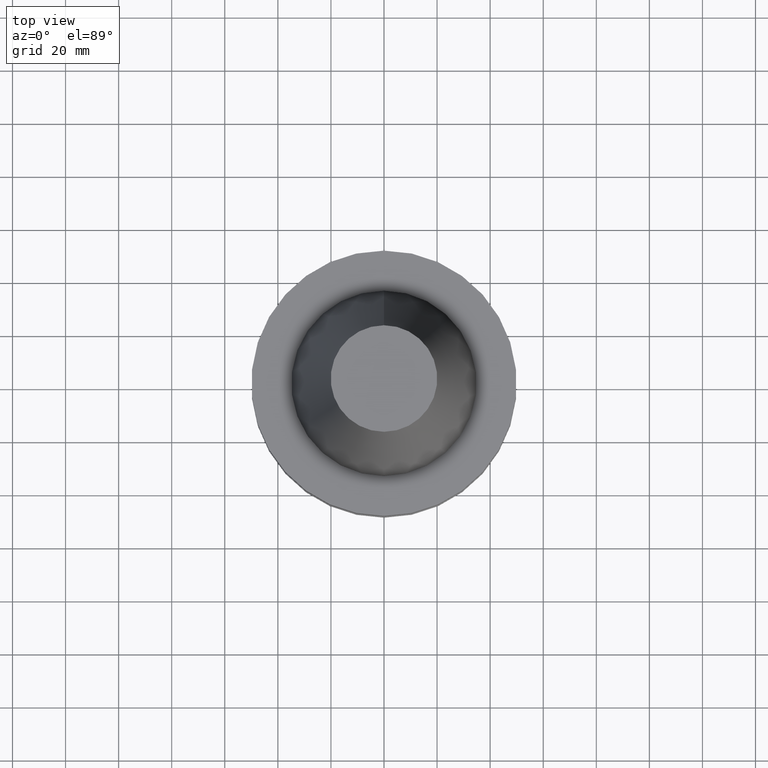
[diagram: clean part render]
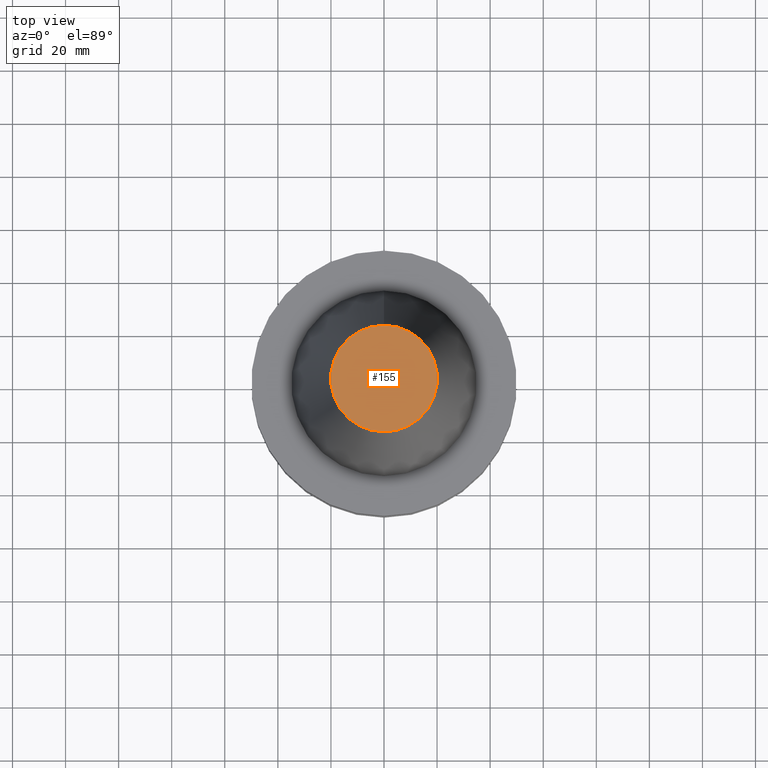
[diagram: same view with one face highlighted and labeled with its STEP entity id]
A machine part, top view. The second image highlights one B-rep face of the part: STEP entity #155.
In plain terms, the highlighted planar face has unit normal (-0, -0, 1).
Its self-contained STEP definition (entity closure, byte-faithful):
#85=EDGE_CURVE('Unnamed[1]',#216,#216,#217,.T.);
#155=ADVANCED_FACE('Unnamed[1]',(#322),#323,.T.);
#216=VERTEX_POINT('',#396);
#217=CIRCLE('',#397,20.0791666651884);
#322=FACE_OUTER_BOUND('',#527,.T.);
#323=PLANE('',#528);
#396=CARTESIAN_POINT('',(-6.23345220766003E-015,20.0791666651884,101.8));
#397=AXIS2_PLACEMENT_3D('',#597,#598,#599);
#527=EDGE_LOOP('',(#712));
#528=AXIS2_PLACEMENT_3D('',#713,#714,#715);
#597=CARTESIAN_POINT('',(-6.23345220766003E-015,1.30258929046129E-014,101.8));
#598=DIRECTION('',(-6.12323399573677E-017,-1.5261999847694E-017,1.0));
#599=DIRECTION('',(-5.76168069387341E-033,1.0,1.5261999847694E-017));
#712=ORIENTED_EDGE('',*,*,#85,.T.);
#713=CARTESIAN_POINT('',(-6.23345220766003E-015,10.0395833325942,101.8));
#714=DIRECTION('',(-6.12323399573677E-017,-1.22464679914735E-016,1.0));
#715=DIRECTION('',(-1.23259516440783E-032,1.0,1.22464679914735E-016));